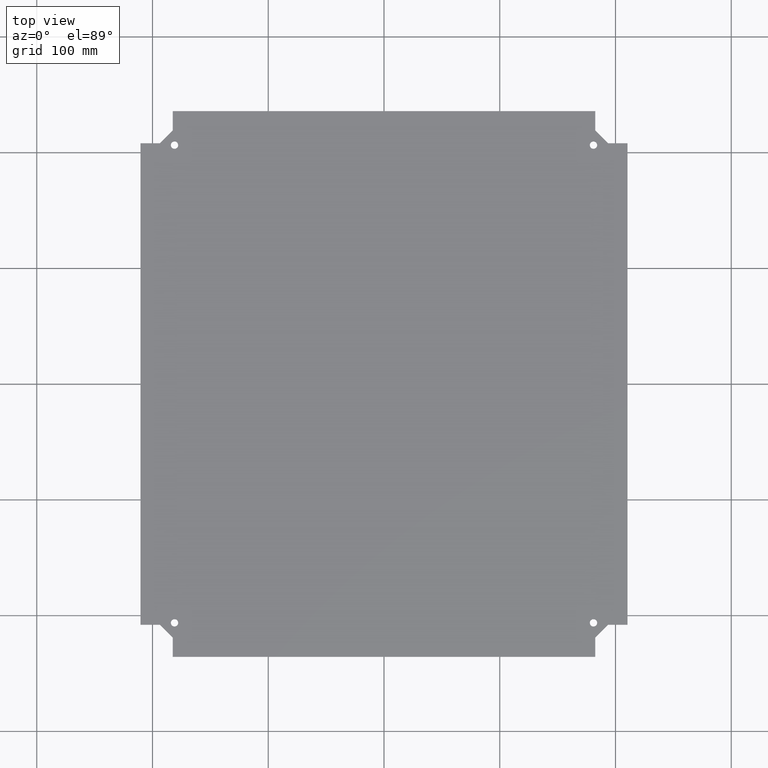
[diagram: clean part render]
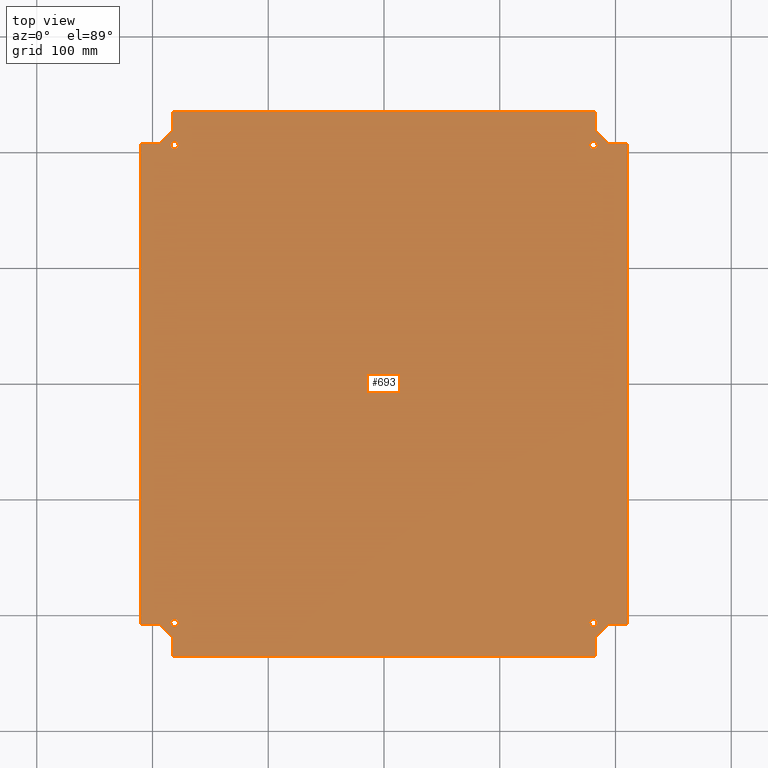
[diagram: same view with one face highlighted and labeled with its STEP entity id]
A machine part, top view. The second image highlights one B-rep face of the part: STEP entity #693.
In plain terms, the highlighted planar face has unit normal (0, 0, 1).
Its self-contained STEP definition (entity closure, byte-faithful):
#55=CARTESIAN_POINT('',(7.250000000000014,-8.124999999999986,0.080000000000000));
#56=VERTEX_POINT('',#55);
#57=CARTESIAN_POINT('',(7.125000000000014,-8.124999999999986,0.080000000000000));
#58=DIRECTION('',(0.0,0.0,-1.0));
#59=DIRECTION('',(-1.0,0.0,0.0));
#60=AXIS2_PLACEMENT_3D('',#57,#58,#59);
#61=CIRCLE('',#60,0.125000000000000);
#62=EDGE_CURVE('',#56,#56,#61,.T.);
#83=CARTESIAN_POINT('',(7.249999999999976,8.125000000000020,0.080000000000000));
#84=VERTEX_POINT('',#83);
#85=CARTESIAN_POINT('',(7.124999999999977,8.125000000000020,0.080000000000000));
#86=DIRECTION('',(0.0,0.0,-1.0));
#87=DIRECTION('',(-1.0,0.0,0.0));
#88=AXIS2_PLACEMENT_3D('',#85,#86,#87);
#89=CIRCLE('',#88,0.125000000000000);
#90=EDGE_CURVE('',#84,#84,#89,.T.);
#111=CARTESIAN_POINT('',(-6.999999999999981,-8.125000000000018,0.080000000000000));
#112=VERTEX_POINT('',#111);
#113=CARTESIAN_POINT('',(-7.124999999999981,-8.125000000000018,0.080000000000000));
#114=DIRECTION('',(0.0,0.0,-1.0));
#115=DIRECTION('',(-1.0,0.0,0.0));
#116=AXIS2_PLACEMENT_3D('',#113,#114,#115);
#117=CIRCLE('',#116,0.125000000000000);
#118=EDGE_CURVE('',#112,#112,#117,.T.);
#139=CARTESIAN_POINT('',(-7.000000000000019,8.124999999999984,0.080000000000000));
#140=VERTEX_POINT('',#139);
#141=CARTESIAN_POINT('',(-7.125000000000019,8.124999999999984,0.080000000000000));
#142=DIRECTION('',(0.0,0.0,-1.0));
#143=DIRECTION('',(-1.0,0.0,0.0));
#144=AXIS2_PLACEMENT_3D('',#141,#142,#143);
#145=CIRCLE('',#144,0.125000000000000);
#146=EDGE_CURVE('',#140,#140,#145,.T.);
#167=CARTESIAN_POINT('',(7.187149999999984,9.281250000000014,0.080000000000000));
#168=VERTEX_POINT('',#167);
#169=CARTESIAN_POINT('',(7.187149999999985,8.623950000000015,0.080000000000000));
#170=VERTEX_POINT('',#169);
#171=CARTESIAN_POINT('',(7.187149999999984,9.281250000000014,0.080000000000000));
#172=DIRECTION('',(0.0,-1.0,0.0));
#173=VECTOR('',#172,0.657299999999999);
#174=LINE('',#171,#173);
#175=EDGE_CURVE('',#168,#170,#174,.T.);
#207=CARTESIAN_POINT('',(7.623949999999986,8.187150000000019,0.080000000000000));
#208=VERTEX_POINT('',#207);
#209=CARTESIAN_POINT('',(7.187149999999985,8.623950000000015,0.080000000000000));
#210=DIRECTION('',(0.707106781186551,-0.707106781186544,0.0));
#211=VECTOR('',#210,0.617728484044566);
#212=LINE('',#209,#211);
#213=EDGE_CURVE('',#170,#208,#212,.T.);
#238=CARTESIAN_POINT('',(8.281249999999984,8.187150000000022,0.080000000000000));
#239=VERTEX_POINT('',#238);
#240=CARTESIAN_POINT('',(7.623949999999986,8.187150000000019,0.080000000000000));
#241=DIRECTION('',(1.0,0.0,0.0));
#242=VECTOR('',#241,0.657299999999998);
#243=LINE('',#240,#242);
#244=EDGE_CURVE('',#208,#239,#243,.T.);
#269=CARTESIAN_POINT('',(8.281250000000021,-8.187149999999983,0.080000000000000));
#270=VERTEX_POINT('',#269);
#271=CARTESIAN_POINT('',(8.281249999999984,8.187150000000022,0.080000000000000));
#272=DIRECTION('',(0.0,-1.0,0.0));
#273=VECTOR('',#272,16.374300000000005);
#274=LINE('',#271,#273);
#275=EDGE_CURVE('',#239,#270,#274,.T.);
#300=CARTESIAN_POINT('',(7.623950000000023,-8.187149999999985,0.080000000000000));
#301=VERTEX_POINT('',#300);
#302=CARTESIAN_POINT('',(8.281250000000021,-8.187149999999983,0.080000000000000));
#303=DIRECTION('',(-1.0,0.0,0.0));
#304=VECTOR('',#303,0.657299999999998);
#305=LINE('',#302,#304);
#306=EDGE_CURVE('',#270,#301,#305,.T.);
#331=CARTESIAN_POINT('',(7.187150000000026,-8.623949999999981,0.080000000000000));
#332=VERTEX_POINT('',#331);
#333=CARTESIAN_POINT('',(7.623950000000023,-8.187149999999985,0.080000000000000));
#334=DIRECTION('',(-0.707106781186548,-0.707106781186547,0.0));
#335=VECTOR('',#334,0.617728484044563);
#336=LINE('',#333,#335);
#337=EDGE_CURVE('',#301,#332,#336,.T.);
#362=CARTESIAN_POINT('',(7.187150000000028,-9.281249999999981,0.080000000000000));
#363=VERTEX_POINT('',#362);
#364=CARTESIAN_POINT('',(7.187150000000026,-8.623949999999981,0.080000000000000));
#365=DIRECTION('',(0.0,-1.0,0.0));
#366=VECTOR('',#365,0.657299999999999);
#367=LINE('',#364,#366);
#368=EDGE_CURVE('',#332,#363,#367,.T.);
#393=CARTESIAN_POINT('',(-7.187149999999982,-9.281250000000018,0.080000000000000));
#394=VERTEX_POINT('',#393);
#395=CARTESIAN_POINT('',(7.187150000000028,-9.281249999999981,0.080000000000000));
#396=DIRECTION('',(-1.0,0.0,0.0));
#397=VECTOR('',#396,14.374300000000009);
#398=LINE('',#395,#397);
#399=EDGE_CURVE('',#363,#394,#398,.T.);
#424=CARTESIAN_POINT('',(-7.187149999999984,-8.623950000000017,0.080000000000000));
#425=VERTEX_POINT('',#424);
#426=CARTESIAN_POINT('',(-7.187149999999982,-9.281250000000018,0.080000000000000));
#427=DIRECTION('',(0.0,1.0,0.0));
#428=VECTOR('',#427,0.657300000000001);
#429=LINE('',#426,#428);
#430=EDGE_CURVE('',#394,#425,#429,.T.);
#455=CARTESIAN_POINT('',(-7.623949999999988,-8.187150000000015,0.080000000000000));
#456=VERTEX_POINT('',#455);
#457=CARTESIAN_POINT('',(-7.187149999999984,-8.623950000000017,0.080000000000000));
#458=DIRECTION('',(-0.707106781186550,0.707106781186545,0.0));
#459=VECTOR('',#458,0.617728484044572);
#460=LINE('',#457,#459);
#461=EDGE_CURVE('',#425,#456,#460,.T.);
#486=CARTESIAN_POINT('',(-8.281249999999984,-8.187150000000019,0.080000000000000));
#487=VERTEX_POINT('',#486);
#488=CARTESIAN_POINT('',(-7.623949999999988,-8.187150000000015,0.080000000000000));
#489=DIRECTION('',(-1.0,0.0,0.0));
#490=VECTOR('',#489,0.657299999999996);
#491=LINE('',#488,#490);
#492=EDGE_CURVE('',#456,#487,#491,.T.);
#517=CARTESIAN_POINT('',(-8.281250000000021,8.187149999999983,0.080000000000000));
#518=VERTEX_POINT('',#517);
#519=CARTESIAN_POINT('',(-8.281249999999984,-8.187150000000019,0.080000000000000));
#520=DIRECTION('',(0.0,1.0,0.0));
#521=VECTOR('',#520,16.374300000000002);
#522=LINE('',#519,#521);
#523=EDGE_CURVE('',#487,#518,#522,.T.);
#548=CARTESIAN_POINT('',(-7.623950000000022,8.187149999999985,0.080000000000000));
#549=VERTEX_POINT('',#548);
#550=CARTESIAN_POINT('',(-8.281250000000021,8.187149999999983,0.080000000000000));
#551=DIRECTION('',(1.0,0.0,0.0));
#552=VECTOR('',#551,0.657299999999999);
#553=LINE('',#550,#552);
#554=EDGE_CURVE('',#518,#549,#553,.T.);
#579=CARTESIAN_POINT('',(-7.187150000000025,8.623949999999983,0.080000000000000));
#580=VERTEX_POINT('',#579);
#581=CARTESIAN_POINT('',(-7.623950000000022,8.187149999999985,0.080000000000000));
#582=DIRECTION('',(0.707106781186547,0.707106781186548,0.0));
#583=VECTOR('',#582,0.617728484044565);
#584=LINE('',#581,#583);
#585=EDGE_CURVE('',#549,#580,#584,.T.);
#610=CARTESIAN_POINT('',(-7.187150000000026,9.281249999999984,0.080000000000000));
#611=VERTEX_POINT('',#610);
#612=CARTESIAN_POINT('',(-7.187150000000025,8.623949999999983,0.080000000000000));
#613=DIRECTION('',(0.0,1.0,0.0));
#614=VECTOR('',#613,0.657300000000001);
#615=LINE('',#612,#614);
#616=EDGE_CURVE('',#580,#611,#615,.T.);
#641=CARTESIAN_POINT('',(-7.187150000000026,9.281249999999984,0.080000000000000));
#642=DIRECTION('',(1.0,0.0,0.0));
#643=VECTOR('',#642,14.374300000000009);
#644=LINE('',#641,#643);
#645=EDGE_CURVE('',#611,#168,#644,.T.);
#658=CARTESIAN_POINT('',(4.698779E-016,9.288283E-016,0.080000000000000));
#659=DIRECTION('',(0.0,0.0,1.0));
#660=DIRECTION('',(1.0,0.0,0.0));
#661=AXIS2_PLACEMENT_3D('',#658,#659,#660);
#662=PLANE('',#661);
#663=ORIENTED_EDGE('',*,*,#175,.F.);
#664=ORIENTED_EDGE('',*,*,#645,.F.);
#665=ORIENTED_EDGE('',*,*,#616,.F.);
#666=ORIENTED_EDGE('',*,*,#585,.F.);
#667=ORIENTED_EDGE('',*,*,#554,.F.);
#668=ORIENTED_EDGE('',*,*,#523,.F.);
#669=ORIENTED_EDGE('',*,*,#492,.F.);
#670=ORIENTED_EDGE('',*,*,#461,.F.);
#671=ORIENTED_EDGE('',*,*,#430,.F.);
#672=ORIENTED_EDGE('',*,*,#399,.F.);
#673=ORIENTED_EDGE('',*,*,#368,.F.);
#674=ORIENTED_EDGE('',*,*,#337,.F.);
#675=ORIENTED_EDGE('',*,*,#306,.F.);
#676=ORIENTED_EDGE('',*,*,#275,.F.);
#677=ORIENTED_EDGE('',*,*,#244,.F.);
#678=ORIENTED_EDGE('',*,*,#213,.F.);
#679=EDGE_LOOP('',(#663,#664,#665,#666,#667,#668,#669,#670,#671,#672,#673,#674,#675,#676,#677,#678));
#680=FACE_OUTER_BOUND('',#679,.T.);
#681=ORIENTED_EDGE('',*,*,#62,.T.);
#682=EDGE_LOOP('',(#681));
#683=FACE_BOUND('',#682,.T.);
#684=ORIENTED_EDGE('',*,*,#90,.T.);
#685=EDGE_LOOP('',(#684));
#686=FACE_BOUND('',#685,.T.);
#687=ORIENTED_EDGE('',*,*,#118,.T.);
#688=EDGE_LOOP('',(#687));
#689=FACE_BOUND('',#688,.T.);
#690=ORIENTED_EDGE('',*,*,#146,.T.);
#691=EDGE_LOOP('',(#690));
#692=FACE_BOUND('',#691,.T.);
#693=ADVANCED_FACE('',(#680,#683,#686,#689,#692),#662,.T.);